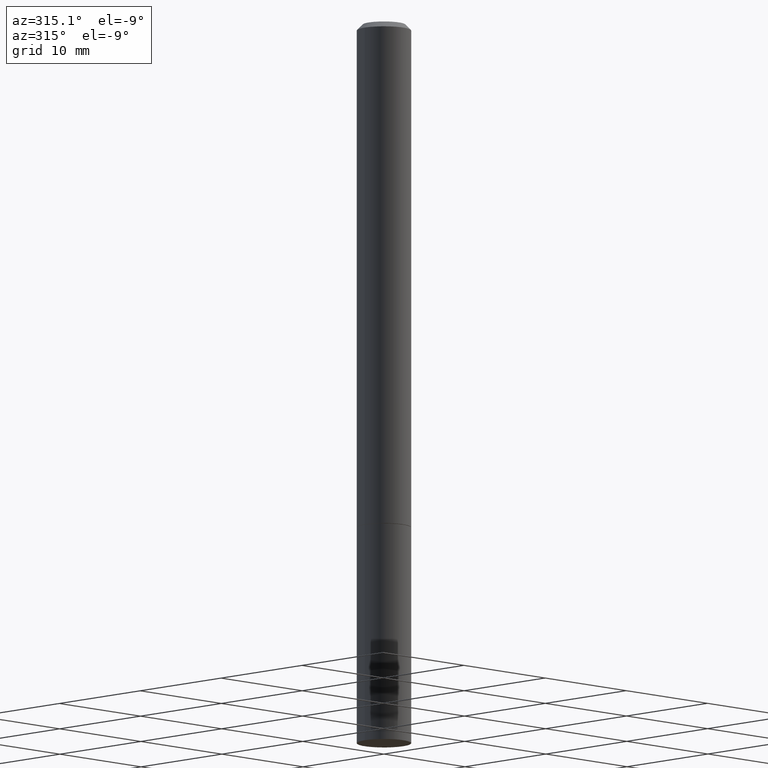
[diagram: clean part render]
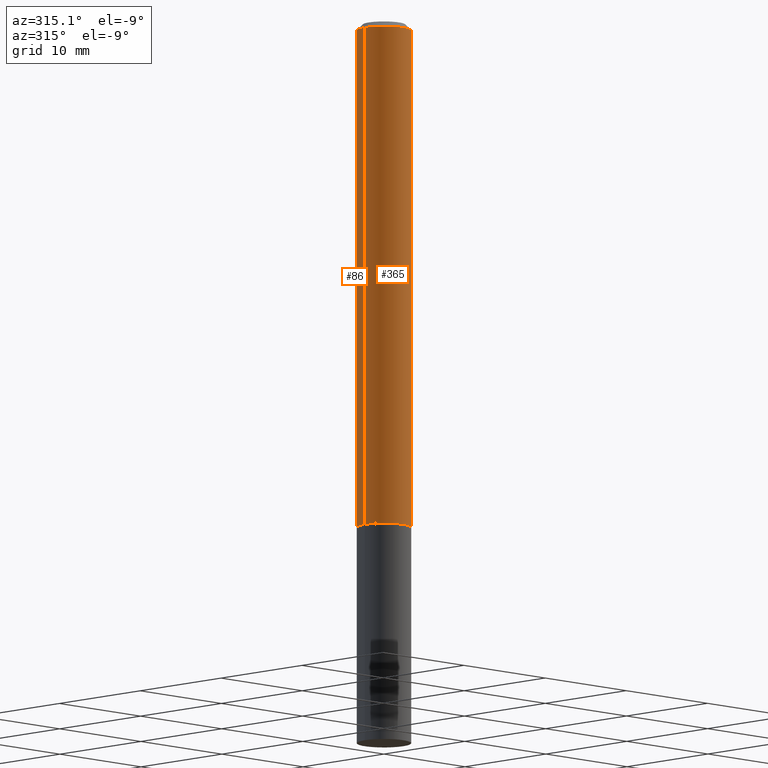
[diagram: same view with one multi-face feature highlighted, each face labeled with its STEP entity id]
A machine part, auxiliary view. The highlighted faces form ONE feature: a constant-radius fillet chain: 2 tangent blend faces with common blend radius 2.3812 mm. The faces share edges in the B-rep.
Their STEP definitions:
[1] entity #86 (Cylinder):
#4 = DIRECTION ( 'NONE',  ( 1.000000000000000000, -6.982962677686266711E-15, 0.000000000000000000 ) ) ;
#5 = VECTOR ( 'NONE', #46, 39.37007874015748143 ) ;
#8 = EDGE_CURVE ( 'NONE', #209, #185, #240, .T. ) ;
#11 = AXIS2_PLACEMENT_3D ( 'NONE', #199, #321, #79 ) ;
#17 = AXIS2_PLACEMENT_3D ( 'NONE', #337, #306, #37 ) ;
#37 = DIRECTION ( 'NONE',  ( 1.000000000000000000, -6.982962677686265133E-15, 4.876176775795935793E-29 ) ) ;
#43 = CARTESIAN_POINT ( 'NONE',  ( -0.09374999999999979183, 5.848231242562231212E-16, -0.02000000000000002123 ) ) ;
#46 = DIRECTION ( 'NONE',  ( -2.445468806185136877E-29, 3.491481338843145188E-15, 1.000000000000000000 ) ) ;
#47 = LINE ( 'NONE', #381, #5 ) ;
#48 = AXIS2_PLACEMENT_3D ( 'NONE', #162, #157, #4 ) ;
#51 = EDGE_LOOP ( 'NONE', ( #332, #270, #366, #147 ) ) ;
#53 = VECTOR ( 'NONE', #202, 39.37007874015748143 ) ;
#79 = DIRECTION ( 'NONE',  ( 1.000000000000000000, -6.982962677686261189E-15, 0.000000000000000000 ) ) ;
#86 = ADVANCED_FACE ( 'NONE', ( #343 ), #369, .T. ) ;
#97 = CIRCLE ( 'NONE', #11, 0.09375000000000001388 ) ;
#107 = CARTESIAN_POINT ( 'NONE',  ( 0.09375000000000001388, -6.761253612669749168E-15, -1.749000000000000110 ) ) ;
#135 = CARTESIAN_POINT ( 'NONE',  ( -0.09374999999999988898, 6.661338147750931354E-16, -4.611501647113968390E-30 ) ) ;
#136 = CARTESIAN_POINT ( 'NONE',  ( 0.09374999999999979183, -7.130013140679426072E-16, -0.02000000000000002123 ) ) ;
#147 = ORIENTED_EDGE ( 'NONE', *, *, #295, .F. ) ;
#157 = DIRECTION ( 'NONE',  ( -2.445468806185136597E-29, 3.491481338843145583E-15, 1.000000000000000000 ) ) ;
#162 = CARTESIAN_POINT ( 'NONE',  ( 4.890937612370278413E-31, -6.982962677686297772E-17, -0.02000000000000002123 ) ) ;
#185 = VERTEX_POINT ( 'NONE', #43 ) ;
#199 = CARTESIAN_POINT ( 'NONE',  ( 4.277124942017804562E-29, -6.106600861636661664E-15, -1.749000000000000110 ) ) ;
#200 = EDGE_CURVE ( 'NONE', #384, #185, #322, .T. ) ;
#202 = DIRECTION ( 'NONE',  ( -2.445468806185136877E-29, 3.491481338843145188E-15, 1.000000000000000000 ) ) ;
#209 = VERTEX_POINT ( 'NONE', #136 ) ;
#215 = VERTEX_POINT ( 'NONE', #107 ) ;
#240 = CIRCLE ( 'NONE', #48, 0.09374999999999979183 ) ;
#270 = ORIENTED_EDGE ( 'NONE', *, *, #200, .T. ) ;
#277 = EDGE_CURVE ( 'NONE', #215, #384, #97, .T. ) ;
#295 = EDGE_CURVE ( 'NONE', #215, #209, #47, .T. ) ;
#306 = DIRECTION ( 'NONE',  ( -2.445468806185136597E-29, 3.491481338843145583E-15, 1.000000000000000000 ) ) ;
#321 = DIRECTION ( 'NONE',  ( -2.445468806185136597E-29, 3.491481338843145583E-15, 1.000000000000000000 ) ) ;
#322 = LINE ( 'NONE', #135, #53 ) ;
#332 = ORIENTED_EDGE ( 'NONE', *, *, #277, .T. ) ;
#337 = CARTESIAN_POINT ( 'NONE',  ( 0.000000000000000000, 0.000000000000000000, 0.000000000000000000 ) ) ;
#343 = FACE_OUTER_BOUND ( 'NONE', #51, .T. ) ;
#366 = ORIENTED_EDGE ( 'NONE', *, *, #8, .F. ) ;
#369 = CYLINDRICAL_SURFACE ( 'NONE', #17, 0.09374999999999988898 ) ;
#381 = CARTESIAN_POINT ( 'NONE',  ( 0.09374999999999988898, -6.546527510330866166E-16, 4.571415727308684201E-30 ) ) ;
#383 = CARTESIAN_POINT ( 'NONE',  ( -0.09375000000000001388, -2.422081429431664218E-15, -1.749000000000000110 ) ) ;
#384 = VERTEX_POINT ( 'NONE', #383 ) ;
[2] entity #365 (Cylinder):
#5 = VECTOR ( 'NONE', #46, 39.37007874015748143 ) ;
#12 = DIRECTION ( 'NONE',  ( 1.000000000000000000, -6.982962677686261189E-15, 0.000000000000000000 ) ) ;
#43 = CARTESIAN_POINT ( 'NONE',  ( -0.09374999999999979183, 5.848231242562231212E-16, -0.02000000000000002123 ) ) ;
#46 = DIRECTION ( 'NONE',  ( -2.445468806185136877E-29, 3.491481338843145188E-15, 1.000000000000000000 ) ) ;
#47 = LINE ( 'NONE', #381, #5 ) ;
#53 = VECTOR ( 'NONE', #202, 39.37007874015748143 ) ;
#65 = DIRECTION ( 'NONE',  ( -2.445468806185136597E-29, 3.491481338843145583E-15, 1.000000000000000000 ) ) ;
#71 = AXIS2_PLACEMENT_3D ( 'NONE', #308, #65, #274 ) ;
#83 = EDGE_LOOP ( 'NONE', ( #104, #272, #244, #363 ) ) ;
#99 = EDGE_CURVE ( 'NONE', #185, #209, #264, .T. ) ;
#104 = ORIENTED_EDGE ( 'NONE', *, *, #200, .F. ) ;
#107 = CARTESIAN_POINT ( 'NONE',  ( 0.09375000000000001388, -6.761253612669749168E-15, -1.749000000000000110 ) ) ;
#135 = CARTESIAN_POINT ( 'NONE',  ( -0.09374999999999988898, 6.661338147750931354E-16, -4.611501647113968390E-30 ) ) ;
#136 = CARTESIAN_POINT ( 'NONE',  ( 0.09374999999999979183, -7.130013140679426072E-16, -0.02000000000000002123 ) ) ;
#140 = DIRECTION ( 'NONE',  ( 1.000000000000000000, -6.982962677686265133E-15, 4.876176775795935793E-29 ) ) ;
#142 = CIRCLE ( 'NONE', #336, 0.09375000000000001388 ) ;
#185 = VERTEX_POINT ( 'NONE', #43 ) ;
#197 = AXIS2_PLACEMENT_3D ( 'NONE', #241, #352, #140 ) ;
#200 = EDGE_CURVE ( 'NONE', #384, #185, #322, .T. ) ;
#202 = DIRECTION ( 'NONE',  ( -2.445468806185136877E-29, 3.491481338843145188E-15, 1.000000000000000000 ) ) ;
#209 = VERTEX_POINT ( 'NONE', #136 ) ;
#215 = VERTEX_POINT ( 'NONE', #107 ) ;
#233 = CARTESIAN_POINT ( 'NONE',  ( 4.277124942017804562E-29, -6.106600861636661664E-15, -1.749000000000000110 ) ) ;
#237 = CYLINDRICAL_SURFACE ( 'NONE', #197, 0.09374999999999988898 ) ;
#241 = CARTESIAN_POINT ( 'NONE',  ( 0.000000000000000000, 0.000000000000000000, 0.000000000000000000 ) ) ;
#244 = ORIENTED_EDGE ( 'NONE', *, *, #295, .T. ) ;
#264 = CIRCLE ( 'NONE', #71, 0.09374999999999979183 ) ;
#272 = ORIENTED_EDGE ( 'NONE', *, *, #311, .T. ) ;
#274 = DIRECTION ( 'NONE',  ( 1.000000000000000000, -6.982962677686266711E-15, 0.000000000000000000 ) ) ;
#295 = EDGE_CURVE ( 'NONE', #215, #209, #47, .T. ) ;
#308 = CARTESIAN_POINT ( 'NONE',  ( 4.890937612370278413E-31, -6.982962677686297772E-17, -0.02000000000000002123 ) ) ;
#311 = EDGE_CURVE ( 'NONE', #384, #215, #142, .T. ) ;
#322 = LINE ( 'NONE', #135, #53 ) ;
#324 = FACE_OUTER_BOUND ( 'NONE', #83, .T. ) ;
#336 = AXIS2_PLACEMENT_3D ( 'NONE', #233, #346, #12 ) ;
#346 = DIRECTION ( 'NONE',  ( -2.445468806185136597E-29, 3.491481338843145583E-15, 1.000000000000000000 ) ) ;
#352 = DIRECTION ( 'NONE',  ( -2.445468806185136597E-29, 3.491481338843145583E-15, 1.000000000000000000 ) ) ;
#363 = ORIENTED_EDGE ( 'NONE', *, *, #99, .F. ) ;
#365 = ADVANCED_FACE ( 'NONE', ( #324 ), #237, .T. ) ;
#381 = CARTESIAN_POINT ( 'NONE',  ( 0.09374999999999988898, -6.546527510330866166E-16, 4.571415727308684201E-30 ) ) ;
#383 = CARTESIAN_POINT ( 'NONE',  ( -0.09375000000000001388, -2.422081429431664218E-15, -1.749000000000000110 ) ) ;
#384 = VERTEX_POINT ( 'NONE', #383 ) ;